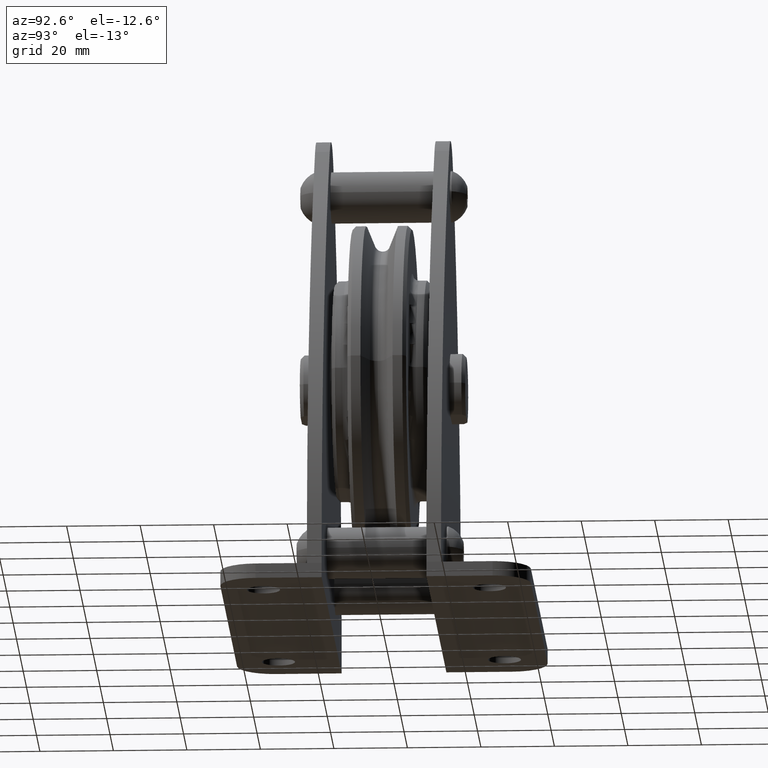
[diagram: clean part render]
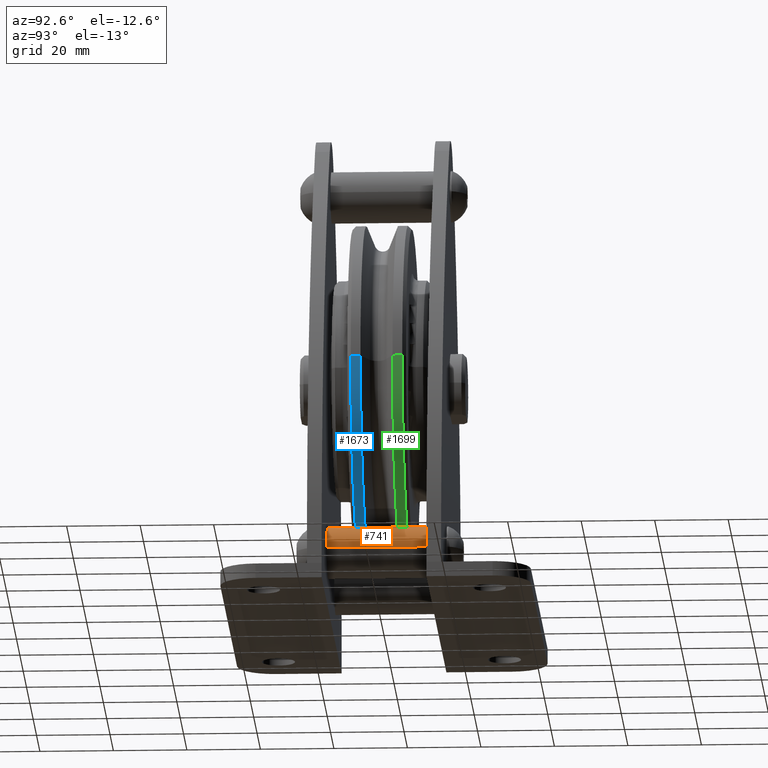
[diagram: same view with three faces highlighted in distinct colors, each labeled with its STEP entity id]
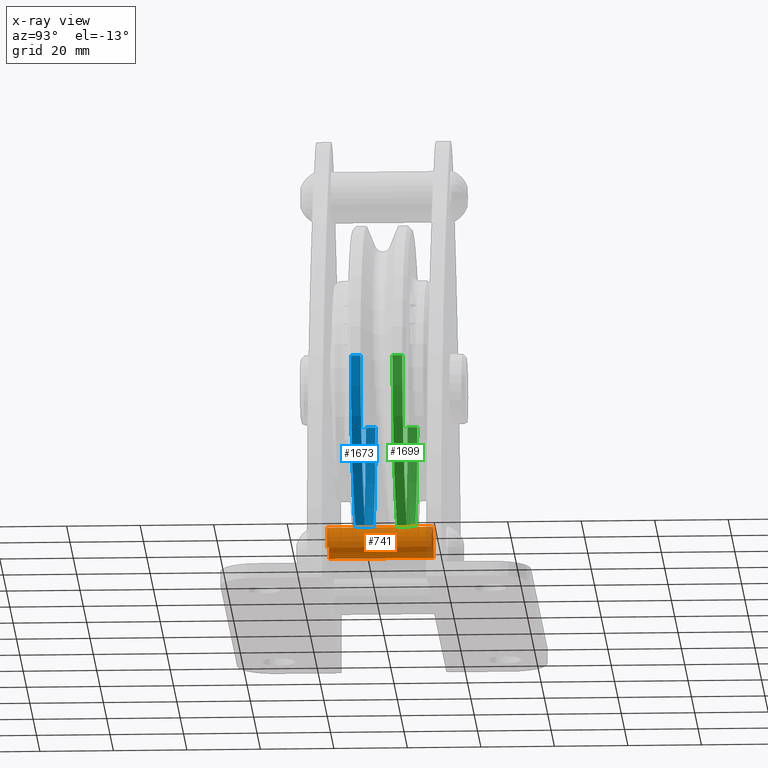
[diagram: x-ray of the same camera — body ghosted, the three highlighted faces saturated]
A machine part, auxiliary view with three faces highlighted in distinct colors.
The next image is the same camera in x-ray (body ghosted, the three faces saturated) — at least one of them is partly hidden behind the body in this view.
Their STEP definitions:

[orange] entity #741 — the highlighted cylindrical surface (edge-blend (fillet) strip) has radius 7 mm, axis along (0, -1, 0).
#741=ADVANCED_FACE('',(#2104),#2105,.T.);
#2104=FACE_OUTER_BOUND('',#4174,.T.);
#2105=CYLINDRICAL_SURFACE('',#4175,7.0);
#4174=EDGE_LOOP('',(#6407,#6408,#6409,#6410));
#4175=AXIS2_PLACEMENT_3D('',#6411,#6412,#6413);
#6407=ORIENTED_EDGE('',*,*,#12526,.F.);
#6408=ORIENTED_EDGE('',*,*,#12527,.F.);
#6409=ORIENTED_EDGE('',*,*,#12528,.F.);
#6410=ORIENTED_EDGE('',*,*,#12529,.F.);
#6411=CARTESIAN_POINT('',(22.5,0.0,-50.0));
#6412=DIRECTION('',(0.0,-1.0,0.0));
#6413=DIRECTION('',(1.0,0.0,0.0));
#12526=EDGE_CURVE('',#15104,#15105,#15106,.T.);
#12527=EDGE_CURVE('',#15107,#15104,#15108,.T.);
#12528=EDGE_CURVE('',#15109,#15107,#15110,.T.);
#12529=EDGE_CURVE('',#15105,#15109,#15111,.T.);
#15104=VERTEX_POINT('',#19626);
#15105=VERTEX_POINT('',#19627);
#15106=LINE('',#19628,#19629);
#15107=VERTEX_POINT('',#19630);
#15108=CIRCLE('',#19631,7.0);
#15109=VERTEX_POINT('',#19632);
#15110=LINE('',#19633,#19634);
#15111=CIRCLE('',#19635,7.0);
#19626=CARTESIAN_POINT('',(29.5,14.25,-50.0));
#19627=CARTESIAN_POINT('',(29.5,-14.25,-50.0));
#19628=CARTESIAN_POINT('',(29.5,0.0,-50.0));
#19629=VECTOR('',#26737,1.0);
#19630=CARTESIAN_POINT('',(15.5,14.25,-50.0));
#19631=AXIS2_PLACEMENT_3D('',#26738,#26739,#26740);
#19632=CARTESIAN_POINT('',(15.5,-14.25,-50.0));
#19633=CARTESIAN_POINT('',(15.5,0.0,-50.0));
#19634=VECTOR('',#26741,1.0);
#19635=AXIS2_PLACEMENT_3D('',#26742,#26743,#26744);
#26737=DIRECTION('',(0.0,-1.0,0.0));
#26738=CARTESIAN_POINT('',(22.5,14.25,-50.0));
#26739=DIRECTION('',(-0.0,1.0,0.0));
#26740=DIRECTION('',(1.0,0.0,0.0));
#26741=DIRECTION('',(-0.0,1.0,-0.0));
#26742=CARTESIAN_POINT('',(22.5,-14.25,-50.0));
#26743=DIRECTION('',(0.0,-1.0,0.0));
#26744=DIRECTION('',(1.0,0.0,0.0));

[blue] entity #1673 — the highlighted cylindrical surface (partial cylindrical patch) has radius 45 mm, axis along (0, -1, 0).
#1673=ADVANCED_FACE('',(#3551),#3552,.T.);
#3551=FACE_OUTER_BOUND('',#5621,.T.);
#3552=CYLINDRICAL_SURFACE('',#5622,45.0);
#5621=EDGE_LOOP('',(#10976,#10977,#10978,#10979));
#5622=AXIS2_PLACEMENT_3D('',#10980,#10981,#10982);
#10976=ORIENTED_EDGE('',*,*,#12590,.T.);
#10977=ORIENTED_EDGE('',*,*,#14348,.F.);
#10978=ORIENTED_EDGE('',*,*,#12591,.T.);
#10979=ORIENTED_EDGE('',*,*,#14349,.T.);
#10980=CARTESIAN_POINT('',(0.0,-5.684744,0.0));
#10981=DIRECTION('',(0.0,-1.0,0.0));
#10982=DIRECTION('',(1.0,0.0,0.0));
#12590=EDGE_CURVE('',#15122,#15197,#15206,.T.);
#12591=EDGE_CURVE('',#15200,#15124,#15207,.T.);
#14348=EDGE_CURVE('',#15200,#15197,#17818,.T.);
#14349=EDGE_CURVE('',#15124,#15122,#17819,.T.);
#15122=VERTEX_POINT('',#19648);
#15124=VERTEX_POINT('',#19651);
#15197=VERTEX_POINT('',#19739);
#15200=VERTEX_POINT('',#19743);
#15206=LINE('',#19750,#19751);
#15207=LINE('',#19752,#19753);
#17818=CIRCLE('',#25710,45.0);
#17819=CIRCLE('',#25711,45.0);
#19648=CARTESIAN_POINT('',(45.0,-4.369488,0.0));
#19651=CARTESIAN_POINT('',(-45.0,-4.369488,5.51091059616309E-015));
#19739=CARTESIAN_POINT('',(45.0,-7.0,0.0));
#19743=CARTESIAN_POINT('',(-45.0,-7.0,5.51091059616309E-015));
#19750=CARTESIAN_POINT('',(45.0,-5.684744,-5.51091059616309E-015));
#19751=VECTOR('',#26843,1.0);
#19752=CARTESIAN_POINT('',(-45.0,-5.684744,5.51091059616309E-015));
#19753=VECTOR('',#26844,1.0);
#25710=AXIS2_PLACEMENT_3D('',#28761,#28762,#28763);
#25711=AXIS2_PLACEMENT_3D('',#28764,#28765,#28766);
#26843=DIRECTION('',(0.0,-1.0,0.0));
#26844=DIRECTION('',(-0.0,1.0,-0.0));
#28761=CARTESIAN_POINT('',(0.0,-7.0,0.0));
#28762=DIRECTION('',(0.0,-1.0,0.0));
#28763=DIRECTION('',(1.0,0.0,0.0));
#28764=CARTESIAN_POINT('',(0.0,-4.369488,0.0));
#28765=DIRECTION('',(0.0,-1.0,0.0));
#28766=DIRECTION('',(1.0,0.0,0.0));

[green] entity #1699 — the highlighted cylindrical surface (partial cylindrical patch) has radius 45 mm, axis along (0, -1, 0).
#1699=ADVANCED_FACE('',(#3594),#3595,.T.);
#3594=FACE_OUTER_BOUND('',#5664,.T.);
#3595=CYLINDRICAL_SURFACE('',#5665,45.0);
#5664=EDGE_LOOP('',(#11080,#11081,#11082,#11083));
#5665=AXIS2_PLACEMENT_3D('',#11084,#11085,#11086);
#11080=ORIENTED_EDGE('',*,*,#12549,.T.);
#11081=ORIENTED_EDGE('',*,*,#14372,.F.);
#11082=ORIENTED_EDGE('',*,*,#12551,.T.);
#11083=ORIENTED_EDGE('',*,*,#14370,.T.);
#11084=CARTESIAN_POINT('',(0.0,5.684744,0.0));
#11085=DIRECTION('',(0.0,-1.0,0.0));
#11086=DIRECTION('',(1.0,0.0,0.0));
#12549=EDGE_CURVE('',#15141,#15134,#15142,.T.);
#12551=EDGE_CURVE('',#15136,#15143,#15145,.T.);
#14370=EDGE_CURVE('',#15143,#15141,#17840,.T.);
#14372=EDGE_CURVE('',#15136,#15134,#17842,.T.);
#15134=VERTEX_POINT('',#19662);
#15136=VERTEX_POINT('',#19665);
#15141=VERTEX_POINT('',#19671);
#15142=LINE('',#19672,#19673);
#15143=VERTEX_POINT('',#19674);
#15145=LINE('',#19676,#19677);
#17840=CIRCLE('',#25732,45.0);
#17842=CIRCLE('',#25734,45.0);
#19662=CARTESIAN_POINT('',(45.0,4.369488,0.0));
#19665=CARTESIAN_POINT('',(-45.0,4.369488,5.51091059616309E-015));
#19671=CARTESIAN_POINT('',(45.0,7.0,0.0));
#19672=CARTESIAN_POINT('',(45.0,5.684744,-5.51091059616309E-015));
#19673=VECTOR('',#26775,1.0);
#19674=CARTESIAN_POINT('',(-45.0,7.0,5.51091059616309E-015));
#19676=CARTESIAN_POINT('',(-45.0,5.684744,5.51091059616309E-015));
#19677=VECTOR('',#26779,1.0);
#25732=AXIS2_PLACEMENT_3D('',#28791,#28792,#28793);
#25734=AXIS2_PLACEMENT_3D('',#28794,#28795,#28796);
#26775=DIRECTION('',(0.0,-1.0,0.0));
#26779=DIRECTION('',(-0.0,1.0,-0.0));
#28791=CARTESIAN_POINT('',(0.0,7.0,0.0));
#28792=DIRECTION('',(0.0,-1.0,0.0));
#28793=DIRECTION('',(1.0,0.0,0.0));
#28794=CARTESIAN_POINT('',(0.0,4.369488,0.0));
#28795=DIRECTION('',(0.0,-1.0,0.0));
#28796=DIRECTION('',(1.0,0.0,0.0));